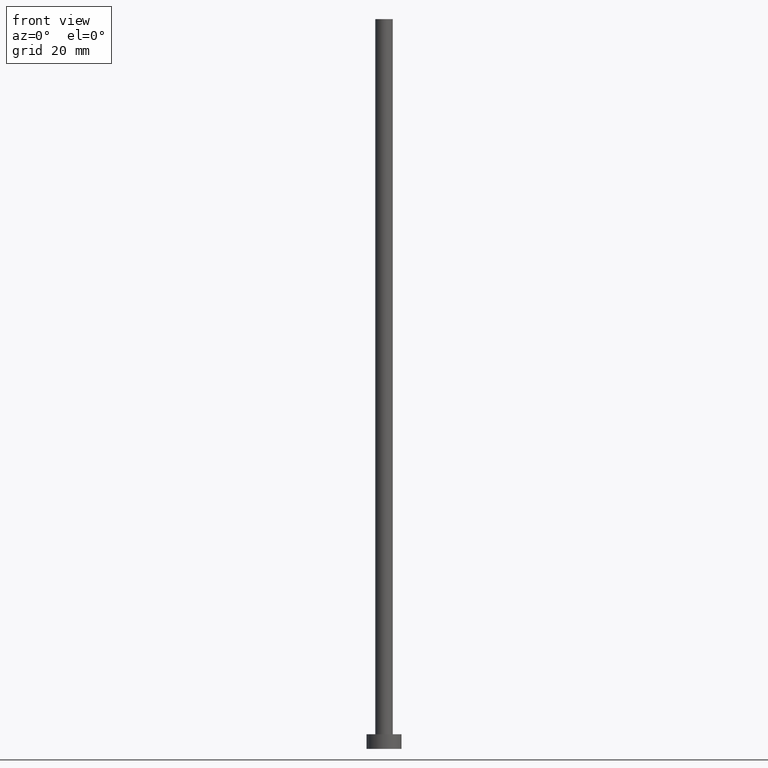
[diagram: clean part render]
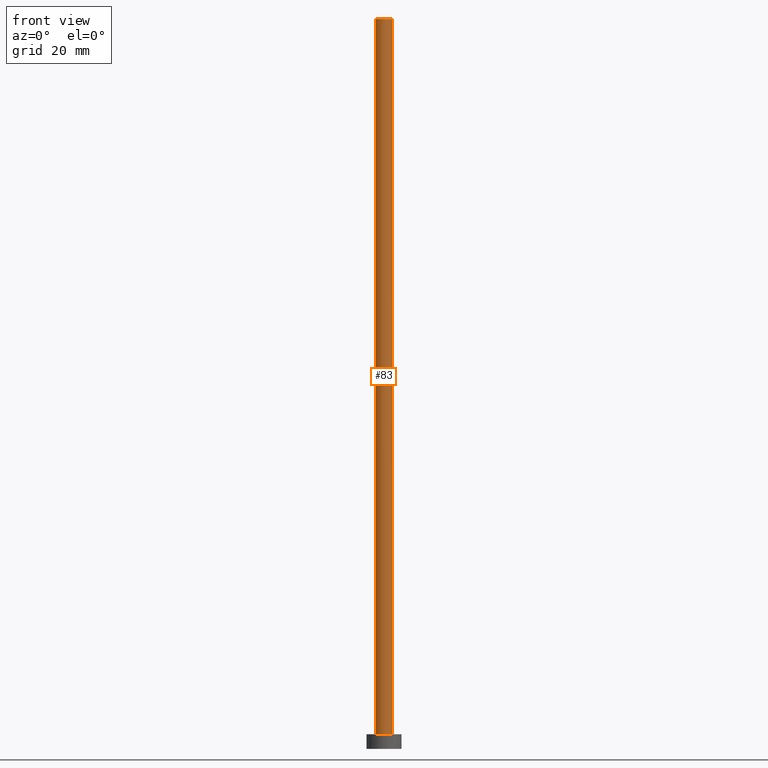
[diagram: same view with one face highlighted and labeled with its STEP entity id]
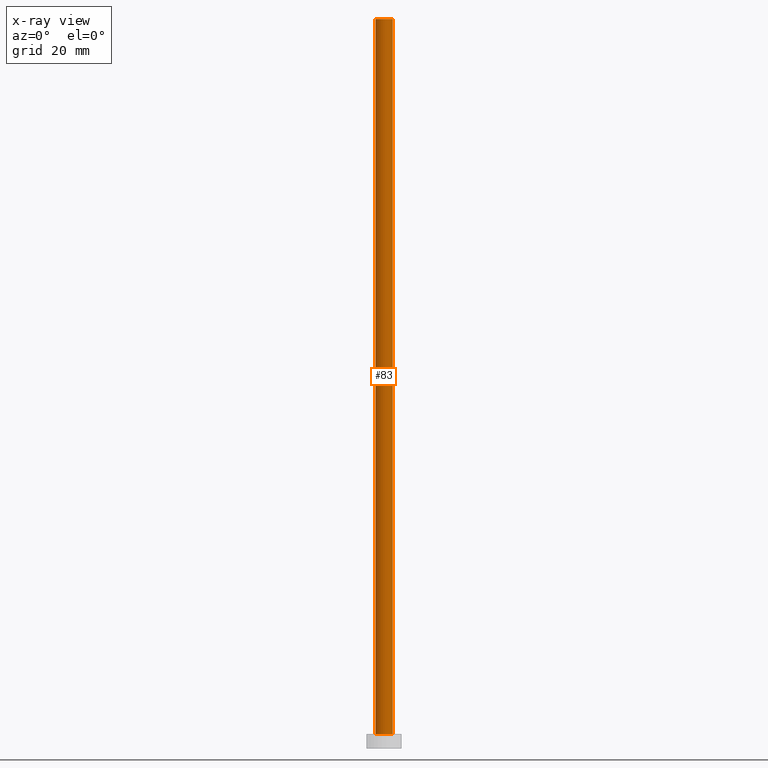
[diagram: x-ray of the same camera — body ghosted, the highlighted face saturated]
A machine part, front view. The second image highlights one B-rep face of the part: STEP entity #83.
The next image is the same camera in x-ray: the body ghosted, the highlighted face saturated — about 0% of this face is hidden behind the body in this view.
In plain terms, the highlighted cylindrical surface (edge-blend (fillet) strip) has radius 3 mm, axis along (-0, -0, -1).
Its self-contained STEP definition (entity closure, byte-faithful):
#9 = CARTESIAN_POINT ( 'NONE',  ( 3.000000000000000444, 3.673940397442060361E-16, 250.0000000000000000 ) ) ;
#14 = CARTESIAN_POINT ( 'NONE',  ( -3.000000000000000444, 0.000000000000000000, 250.0000000000000000 ) ) ;
#15 = VECTOR ( 'NONE', #228, 1000.000000000000000 ) ;
#24 = VERTEX_POINT ( 'NONE', #243 ) ;
#30 = DIRECTION ( 'NONE',  ( -0.000000000000000000, -0.000000000000000000, -1.000000000000000000 ) ) ;
#31 = DIRECTION ( 'NONE',  ( -0.000000000000000000, -0.000000000000000000, -1.000000000000000000 ) ) ;
#33 = CARTESIAN_POINT ( 'NONE',  ( 0.000000000000000000, 0.000000000000000000, 250.0000000000000000 ) ) ;
#43 = CYLINDRICAL_SURFACE ( 'NONE', #218, 3.000000000000000444 ) ;
#46 = EDGE_CURVE ( 'NONE', #97, #235, #247, .T. ) ;
#50 = DIRECTION ( 'NONE',  ( -1.000000000000000000, 0.000000000000000000, 0.000000000000000000 ) ) ;
#62 = ORIENTED_EDGE ( 'NONE', *, *, #191, .T. ) ;
#66 = AXIS2_PLACEMENT_3D ( 'NONE', #164, #236, #238 ) ;
#70 = LINE ( 'NONE', #9, #226 ) ;
#83 = ADVANCED_FACE ( 'NONE', ( #223 ), #43, .T. ) ;
#97 = VERTEX_POINT ( 'NONE', #156 ) ;
#102 = ORIENTED_EDGE ( 'NONE', *, *, #177, .F. ) ;
#107 = AXIS2_PLACEMENT_3D ( 'NONE', #196, #109, #210 ) ;
#109 = DIRECTION ( 'NONE',  ( 0.000000000000000000, 0.000000000000000000, 1.000000000000000000 ) ) ;
#123 = ORIENTED_EDGE ( 'NONE', *, *, #46, .F. ) ;
#129 = CARTESIAN_POINT ( 'NONE',  ( 3.000000000000000444, 3.673940397442060361E-16, 250.0000000000000000 ) ) ;
#138 = EDGE_LOOP ( 'NONE', ( #102, #123, #62, #241 ) ) ;
#156 = CARTESIAN_POINT ( 'NONE',  ( -3.000000000000000444, 0.000000000000000000, 250.0000000000000000 ) ) ;
#160 = EDGE_CURVE ( 'NONE', #24, #201, #211, .T. ) ;
#164 = CARTESIAN_POINT ( 'NONE',  ( 0.000000000000000000, 0.000000000000000000, 250.0000000000000000 ) ) ;
#177 = EDGE_CURVE ( 'NONE', #235, #201, #70, .T. ) ;
#191 = EDGE_CURVE ( 'NONE', #97, #24, #246, .T. ) ;
#193 = CARTESIAN_POINT ( 'NONE',  ( 3.000000000000000444, 3.673940397442060361E-16, 5.000000000000000000 ) ) ;
#196 = CARTESIAN_POINT ( 'NONE',  ( 0.000000000000000000, 0.000000000000000000, 5.000000000000000000 ) ) ;
#201 = VERTEX_POINT ( 'NONE', #193 ) ;
#210 = DIRECTION ( 'NONE',  ( 1.000000000000000000, 0.000000000000000000, 0.000000000000000000 ) ) ;
#211 = CIRCLE ( 'NONE', #107, 3.000000000000000444 ) ;
#218 = AXIS2_PLACEMENT_3D ( 'NONE', #33, #30, #50 ) ;
#223 = FACE_OUTER_BOUND ( 'NONE', #138, .T. ) ;
#226 = VECTOR ( 'NONE', #31, 1000.000000000000000 ) ;
#228 = DIRECTION ( 'NONE',  ( -0.000000000000000000, -0.000000000000000000, -1.000000000000000000 ) ) ;
#235 = VERTEX_POINT ( 'NONE', #129 ) ;
#236 = DIRECTION ( 'NONE',  ( 0.000000000000000000, 0.000000000000000000, 1.000000000000000000 ) ) ;
#238 = DIRECTION ( 'NONE',  ( 1.000000000000000000, 0.000000000000000000, 0.000000000000000000 ) ) ;
#241 = ORIENTED_EDGE ( 'NONE', *, *, #160, .T. ) ;
#243 = CARTESIAN_POINT ( 'NONE',  ( -3.000000000000000444, 0.000000000000000000, 5.000000000000000000 ) ) ;
#246 = LINE ( 'NONE', #14, #15 ) ;
#247 = CIRCLE ( 'NONE', #66, 3.000000000000000444 ) ;